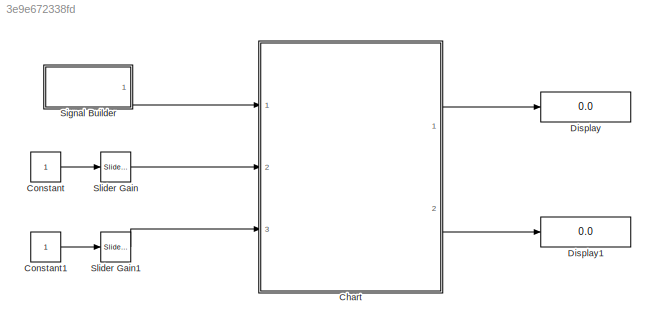
MODEL slx_3e9e672338fd
KIND model
CONFIG AbsTol = auto
CONFIG EnableMultiTasking = off
CONFIG FixedStep = auto
CONFIG MaxStep = auto
CONFIG MinStep = auto
CONFIG RelTol = 1e-3
CONFIG SampleTimeConstraint = Unconstrained
CONFIG Solver = VariableStepAuto
CONFIG SolverName = VariableStepAuto
CONFIG StartTime = 0.0
CONFIG StopTime = 10.0
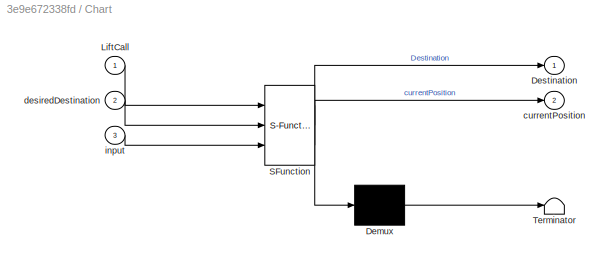
BLOCK [SubSystem] Chart
  ErrorFcn = Stateflow.Translate.translate
  PermitHierarchicalResolution = ExplicitOnly
  Ports = [3, 2]
  RequestExecContextInheritance = off
  SFBlockType = Chart
  TreatAsAtomicUnit = on
BLOCK [Demux] Chart/ Demux 
  Outputs = 1
  Ports = [1, 1]
BLOCK [S-Function] Chart/ SFunction 
  EnableBusSupport = on
  FunctionName = sf_sfun
  PortCounts = [3 3]
  Ports = [3, 3]
  SFcnIsStateOwnerBlock = off
  SFunctionDeploymentMode = off
  Tag = Stateflow S-Function 3
BLOCK [Terminator] Chart/ Terminator 
BLOCK [Outport] Chart/Destination
BLOCK [Inport] Chart/LiftCall
BLOCK [Outport] Chart/currentPosition
  Port = 2
BLOCK [Inport] Chart/desiredDestination
  Port = 2
BLOCK [Inport] Chart/input
  Port = 3
BLOCK [Constant] Constant
BLOCK [Constant] Constant1
BLOCK [Display] Display
  Decimation = 1
  Ports = [1]
BLOCK [Display] Display1
  Decimation = 1
  Ports = [1]
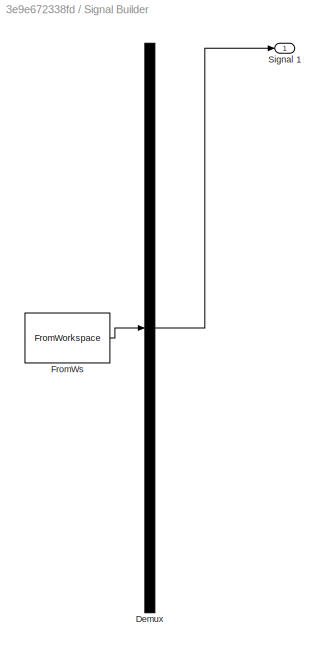
BLOCK [SubSystem] Signal Builder
  ClipboardFcn = sigbuilder_block('clipboard');
  CloseFcn = sigbuilder_block('close');
  ContinueFcn = sigbuilder_block('continue');
  CopyFcn = sigbuilder_block('copy');
  DeleteFcn = sigbuilder_block('delete');
  LoadFcn = sigbuilder_block('load');
  MaskHideContents = on
  ModelCloseFcn = sigbuilder_block('modelClose');
  NameChangeFcn = sigbuilder_block('namechange');
  OpenFcn = sigbuilder_block('open',[404 117.5 550.5 362.5 ]);
  PauseFcn = sigbuilder_block('pause');
  Ports = [0, 1]
  PreSaveFcn = sigbuilder_block('preSave');
  RequestExecContextInheritance = off
  StartFcn = sigbuilder_block('start');
  StopFcn = sigbuilder_block('stop');
  Tag = STV Subsys
BLOCK [Demux] Signal Builder/Demux
  DisplayOption = none
  Outputs = 1
  Ports = [1, 1]
  Tag = STV Demux
BLOCK [FromWorkspace] Signal Builder/FromWs
  Tag = STV FromWs
  VariableName = tuvar
BLOCK [Outport] Signal Builder/Signal 1
  Tag = STV Outport
BLOCK [Reference] Slider Gain  REF=simulink/Math
Operations/Slider
Gain
  Ports = [1, 1]
  SourceBlock = simulink/Math\nOperations/Slider\nGain
  SourceProductBaseCode = SL
  SourceType = Slider Gain
BLOCK [Reference] Slider Gain1  REF=simulink/Math
Operations/Slider
Gain
  Ports = [1, 1]
  SourceBlock = simulink/Math\nOperations/Slider\nGain
  SourceProductBaseCode = SL
  SourceType = Slider Gain
LINE Chart:1 -> Display:1
LINE Chart:2 -> Display1:1
LINE Constant1:1 -> Slider Gain1:1
LINE Constant:1 -> Slider Gain:1
LINE Signal Builder:1 -> Chart:1
LINE Slider Gain1:1 -> Chart:3
LINE Slider Gain:1 -> Chart:2
CHART Chart states=15 transitions=21
  STATE_LABEL 'Stopped'
  STATE_LABEL 'stoppedAndWaiting'
  STATE_LABEL 'intialise\nentry: motor=false;\n brakeoff=false;\n doors=false;\n Destinationreached= false;\n commandprocessing=false;'
  STATE_LABEL 'settingdown\nentry:\nup=false;'
  STATE_LABEL 'destination\nDestination=desiredDestination;\ncurrentPosition=input;\n'
  STATE_LABEL 'settingup\nentry:\nup=true;'
  STATE_LABEL 'commandDone\ncommandprocessing=true;'
  STATE_LABEL '[~LiftCall&&~commandprocessing]'
  STATE_LABEL '[LiftCall]'
  STATE_LABEL '[currentPosition>desiredDestination]'
  STATE_LABEL '[currentPosition<desiredDestination]'
  STATE_LABEL 'stopAtDestination\n'
  STATE_LABEL 'stopLift\nentry:\nmotor=false;\nbrakeoff=false;\n'
  STATE_LABEL 'ErrorState\nentry:\ndoors=false;'
  STATE_LABEL 'Openingdoors\nentry:\nDestinationreached=true;\ndoors=true;'
  STATE_LABEL '[~currentPosition==desiredDestination]'
  STATE_LABEL '[currentPosition==desiredDestination]'
  STATE_LABEL '[doors]'
  STATE_LABEL '[currentPosition==desiredDestination]'
  STATE_LABEL 'stoppedAndWaiting'
  STATE_LABEL 'intialise\nentry: motor=false;\n brakeoff=false;\n doors=false;\n Destinationreached= false;\n commandprocessing=false;'
  STATE_LABEL 'settingdown\nentry:\nup=false;'
  STATE_LABEL 'destination\nDestination=desiredDestination;\ncurrentPosition=input;\n'
  STATE_LABEL 'settingup\nentry:\nup=true;'
  STATE_LABEL 'commandDone\ncommandprocessing=true;'
  STATE_LABEL '[~LiftCall&&~commandprocessing]'
  STATE_LABEL '[LiftCall]'
  STATE_LABEL '[currentPosition>desiredDestination]'
  STATE_LABEL '[currentPosition<desiredDestination]'
  STATE_LABEL 'intialise\nentry: motor=false;\n brakeoff=false;\n doors=false;\n Destinationreached= false;\n commandprocessing=false;'
  STATE_LABEL 'settingdown\nentry:\nup=false;'
  STATE_LABEL 'destination\nDestination=desiredDestination;\ncurrentPosition=input;\n'
  STATE_LABEL 'settingup\nentry:\nup=true;'
  STATE_LABEL 'commandDone\ncommandprocessing=true;'
  STATE_LABEL 'stopAtDestination\n'
  STATE_LABEL 'stopLift\nentry:\nmotor=false;\nbrakeoff=false;\n'
  STATE_LABEL 'ErrorState\nentry:\ndoors=false;'
  STATE_LABEL 'Openingdoors\nentry:\nDestinationreached=true;\ndoors=true;'
  STATE_LABEL '[~currentPosition==desiredDestination]'
  STATE_LABEL '[currentPosition==desiredDestination]'
CHART  states=0 transitions=0
